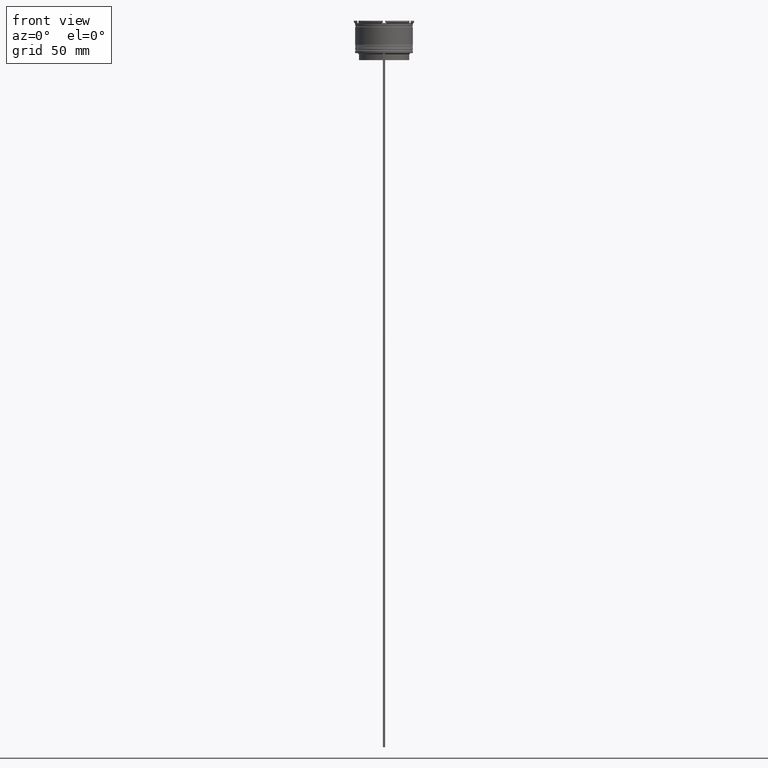
[diagram: clean part render]
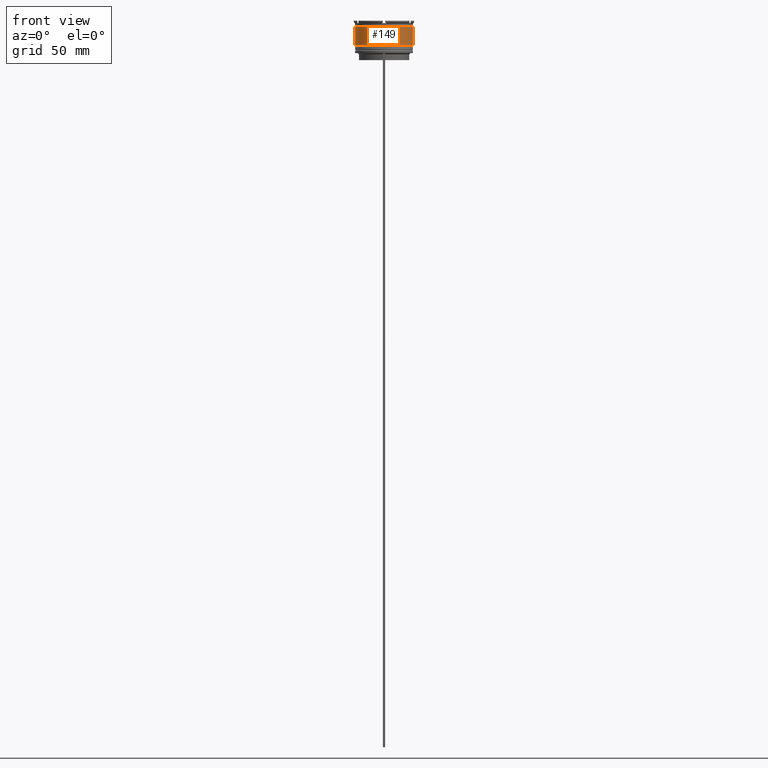
[diagram: same view with one face highlighted and labeled with its STEP entity id]
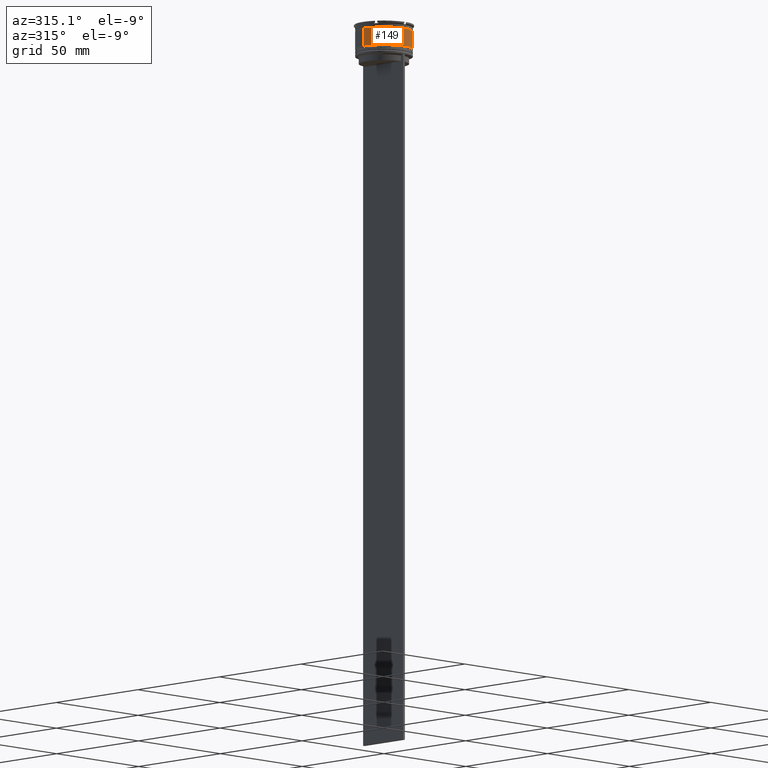
[diagram: same view with one face highlighted and labeled with its STEP entity id]
A machine part, front view. The second image highlights one B-rep face of the part: STEP entity #149.
A second angle (auxiliary view) of the same face is appended — the face is thin or edge-on in the first view.
In plain terms, the highlighted cylindrical surface (edge-blend (fillet) strip) has radius 12.5 mm, axis along (-0, -0, 1).
Its self-contained STEP definition (entity closure, byte-faithful):
#40 = AXIS2_PLACEMENT_3D ( 'NONE', #1979, #1966, #518 ) ;
#85 = VECTOR ( 'NONE', #2509, 1000.000000000000000 ) ;
#96 = DIRECTION ( 'NONE',  ( 1.000000000000000000, 0.000000000000000000, 0.000000000000000000 ) ) ;
#149 = ADVANCED_FACE ( 'NONE', ( #529 ), #1385, .T. ) ;
#182 = EDGE_CURVE ( 'NONE', #1851, #2609, #2744, .T. ) ;
#249 = VERTEX_POINT ( 'NONE', #822 ) ;
#312 = DIRECTION ( 'NONE',  ( -0.000000000000000000, -0.000000000000000000, 1.000000000000000000 ) ) ;
#330 = CARTESIAN_POINT ( 'NONE',  ( 12.50000000000000178, 0.000000000000000000, -10.50000000000000178 ) ) ;
#508 = VECTOR ( 'NONE', #2202, 1000.000000000000000 ) ;
#518 = DIRECTION ( 'NONE',  ( 1.000000000000000000, 0.000000000000000000, 0.000000000000000000 ) ) ;
#529 = FACE_OUTER_BOUND ( 'NONE', #1953, .T. ) ;
#637 = EDGE_CURVE ( 'NONE', #249, #1851, #1490, .T. ) ;
#733 = CIRCLE ( 'NONE', #2575, 12.49999999999999822 ) ;
#737 = CARTESIAN_POINT ( 'NONE',  ( 12.49999999999999822, 0.000000000000000000, -2.699999999999999289 ) ) ;
#816 = EDGE_CURVE ( 'NONE', #1333, #2609, #733, .T. ) ;
#822 = CARTESIAN_POINT ( 'NONE',  ( -12.50000000000000355, 1.530808498934191916E-15, -10.50000000000000178 ) ) ;
#832 = ORIENTED_EDGE ( 'NONE', *, *, #816, .F. ) ;
#886 = LINE ( 'NONE', #1738, #508 ) ;
#1047 = CARTESIAN_POINT ( 'NONE',  ( -12.49999999999999822, 1.530808498934191324E-15, -2.699999999999999289 ) ) ;
#1233 = ORIENTED_EDGE ( 'NONE', *, *, #1716, .F. ) ;
#1333 = VERTEX_POINT ( 'NONE', #1047 ) ;
#1385 = CYLINDRICAL_SURFACE ( 'NONE', #2160, 12.50000000000000000 ) ;
#1442 = ORIENTED_EDGE ( 'NONE', *, *, #637, .T. ) ;
#1490 = CIRCLE ( 'NONE', #40, 12.50000000000000178 ) ;
#1536 = ORIENTED_EDGE ( 'NONE', *, *, #182, .T. ) ;
#1716 = EDGE_CURVE ( 'NONE', #249, #1333, #886, .T. ) ;
#1738 = CARTESIAN_POINT ( 'NONE',  ( -12.50000000000000000, 1.530808498934191521E-15, 0.000000000000000000 ) ) ;
#1851 = VERTEX_POINT ( 'NONE', #330 ) ;
#1890 = CARTESIAN_POINT ( 'NONE',  ( 12.50000000000000000, 0.000000000000000000, 0.000000000000000000 ) ) ;
#1953 = EDGE_LOOP ( 'NONE', ( #1233, #1442, #1536, #832 ) ) ;
#1966 = DIRECTION ( 'NONE',  ( -0.000000000000000000, -0.000000000000000000, 1.000000000000000000 ) ) ;
#1979 = CARTESIAN_POINT ( 'NONE',  ( 0.000000000000000000, 0.000000000000000000, -10.50000000000000178 ) ) ;
#2065 = DIRECTION ( 'NONE',  ( 1.000000000000000000, 0.000000000000000000, 0.000000000000000000 ) ) ;
#2160 = AXIS2_PLACEMENT_3D ( 'NONE', #2427, #312, #96 ) ;
#2202 = DIRECTION ( 'NONE',  ( -0.000000000000000000, -0.000000000000000000, 1.000000000000000000 ) ) ;
#2427 = CARTESIAN_POINT ( 'NONE',  ( 0.000000000000000000, 0.000000000000000000, 0.000000000000000000 ) ) ;
#2455 = DIRECTION ( 'NONE',  ( -0.000000000000000000, -0.000000000000000000, 1.000000000000000000 ) ) ;
#2509 = DIRECTION ( 'NONE',  ( -0.000000000000000000, -0.000000000000000000, 1.000000000000000000 ) ) ;
#2575 = AXIS2_PLACEMENT_3D ( 'NONE', #2666, #2455, #2065 ) ;
#2609 = VERTEX_POINT ( 'NONE', #737 ) ;
#2666 = CARTESIAN_POINT ( 'NONE',  ( 0.000000000000000000, 0.000000000000000000, -2.699999999999999289 ) ) ;
#2744 = LINE ( 'NONE', #1890, #85 ) ;